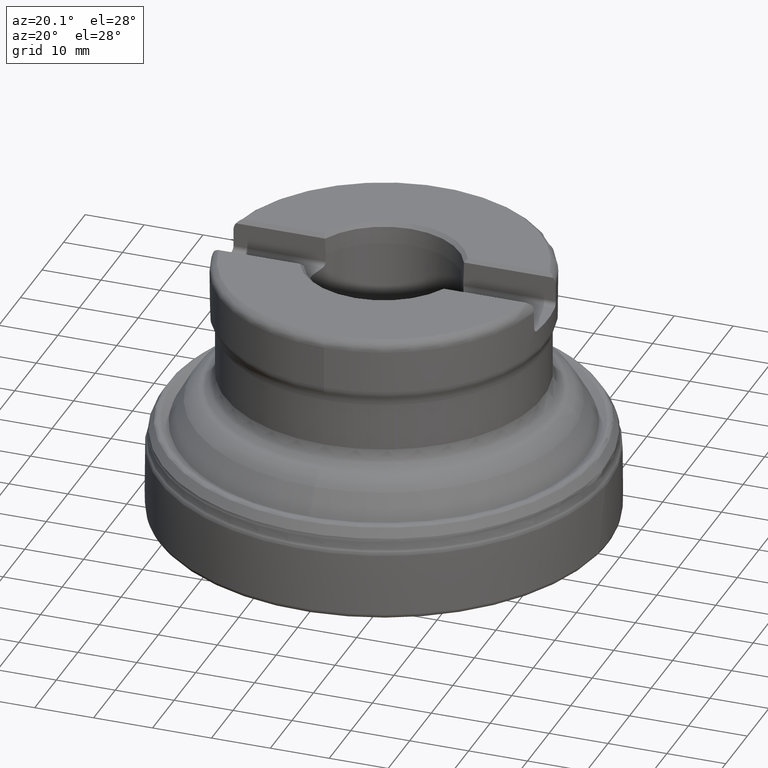
[diagram: clean part render]
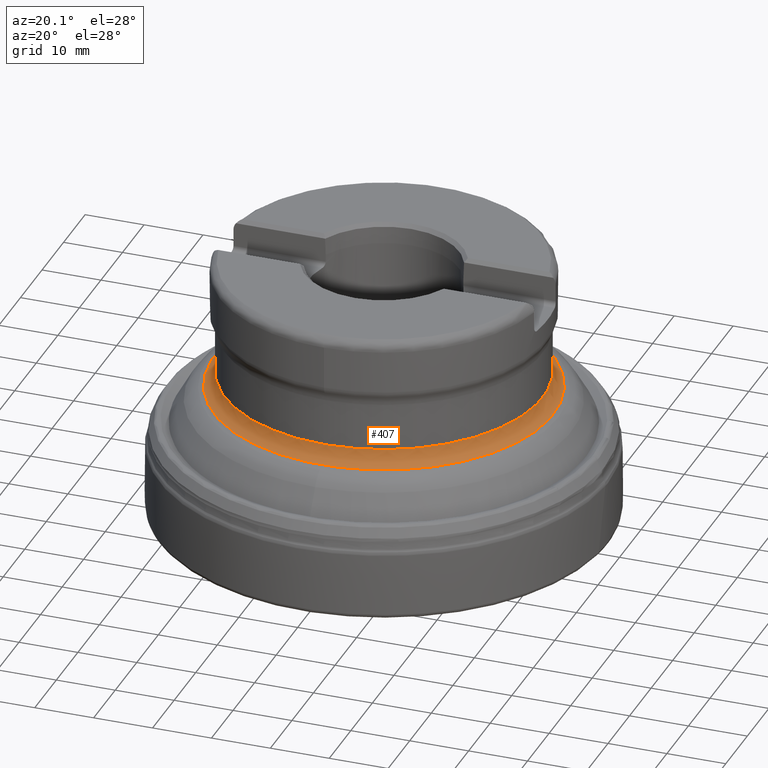
[diagram: same view with one face highlighted and labeled with its STEP entity id]
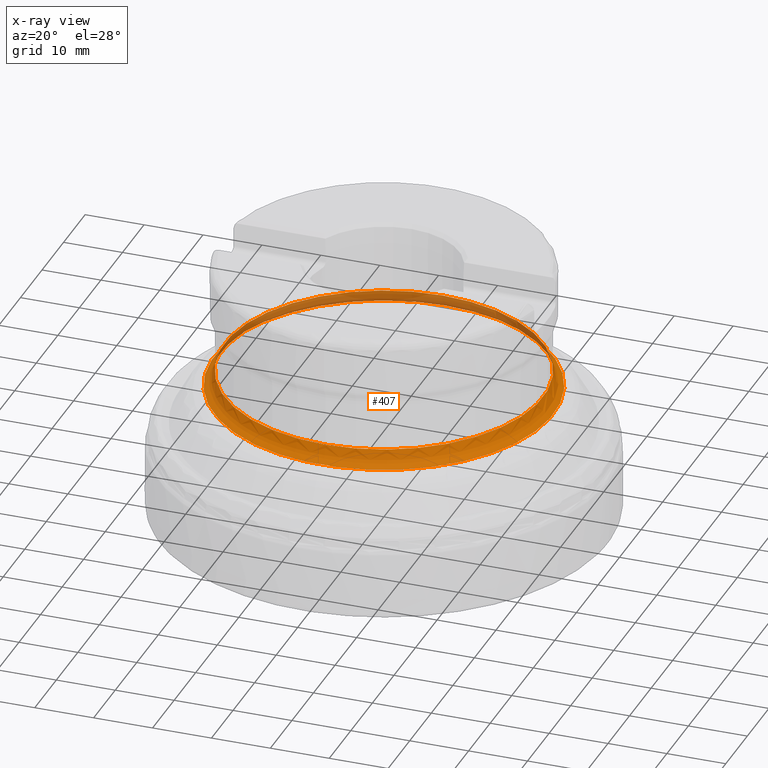
[diagram: x-ray of the same camera — body ghosted, the highlighted face saturated]
A machine part, auxiliary view. The second image highlights one B-rep face of the part: STEP entity #407.
The next image is the same camera in x-ray: the body ghosted, the highlighted face saturated — about 25% of this face is hidden behind the body in this view.
In plain terms, the highlighted toroidal blend (fillet) surface has major radius 30 mm and minor (blend) radius 3 mm.
Its self-contained STEP definition (entity closure, byte-faithful):
#301=FACE_BOUND('',#549,.T.);
#302=FACE_BOUND('',#550,.T.);
#407=ADVANCED_FACE('',(#301,#302),#445,.F.);
#445=TOROIDAL_SURFACE('',#1292,30.,3.);
#549=EDGE_LOOP('',(#853));
#550=EDGE_LOOP('',(#854));
#616=CIRCLE('',#1211,27.);
#619=CIRCLE('',#1215,28.7797900707726);
#853=ORIENTED_EDGE('',*,*,#1038,.F.);
#854=ORIENTED_EDGE('',*,*,#1041,.F.);
#936=VERTEX_POINT('',#2055);
#939=VERTEX_POINT('',#2062);
#1038=EDGE_CURVE('',#936,#936,#616,.T.);
#1041=EDGE_CURVE('',#939,#939,#619,.T.);
#1211=AXIS2_PLACEMENT_3D('',#2054,#1355,#1356);
#1215=AXIS2_PLACEMENT_3D('',#2061,#1363,#1364);
#1292=AXIS2_PLACEMENT_3D('',#2327,#1533,#1534);
#1355=DIRECTION('',(0.,1.17145536458252E-15,1.));
#1356=DIRECTION('',(0.,1.,-1.15648231731787E-15));
#1363=DIRECTION('',(0.,-1.17145536458252E-15,-1.));
#1364=DIRECTION('',(0.,1.,-1.20551503100678E-15));
#1533=DIRECTION('',(0.,-1.17145536458252E-15,-1.));
#1534=DIRECTION('',(0.,1.,-1.15648231731787E-15));
#2054=CARTESIAN_POINT('',(0.,2.89831169991839E-14,24.7411193592619));
#2055=CARTESIAN_POINT('',(0.,27.,24.7411193592619));
#2061=CARTESIAN_POINT('',(0.,2.57725838177476E-14,22.0004829863341));
#2062=CARTESIAN_POINT('',(0.,28.7797900707726,22.0004829863341));
#2327=CARTESIAN_POINT('',(0.,2.89831169991839E-14,24.7411193592619));